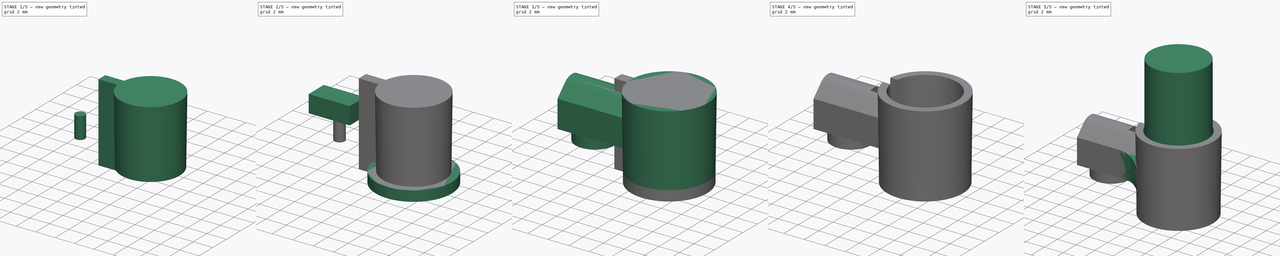
[diagram: build sequence overview — one tinted view per stage of 5, left to right]
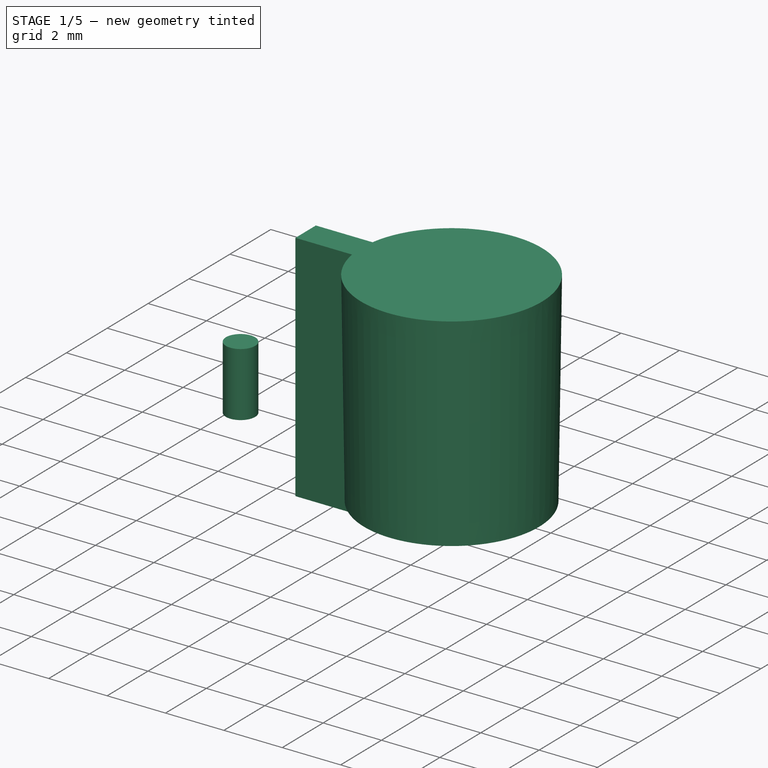
[diagram: stage 1 of 5 — iso view after this stage's code; geometry added in this stage tinted green]
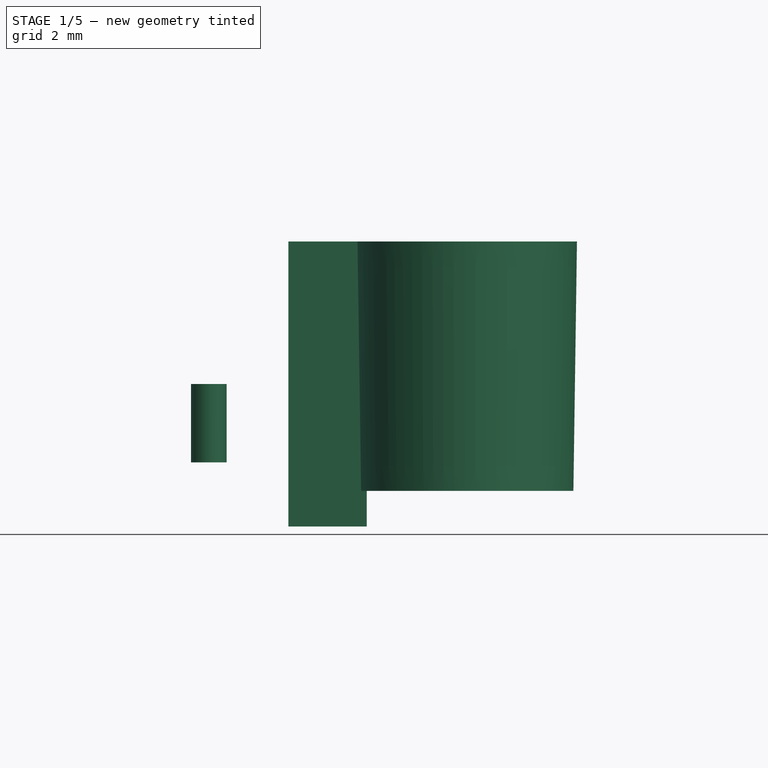
[diagram: stage 1 of 5 — front view after this stage's code; geometry added in this stage tinted green]
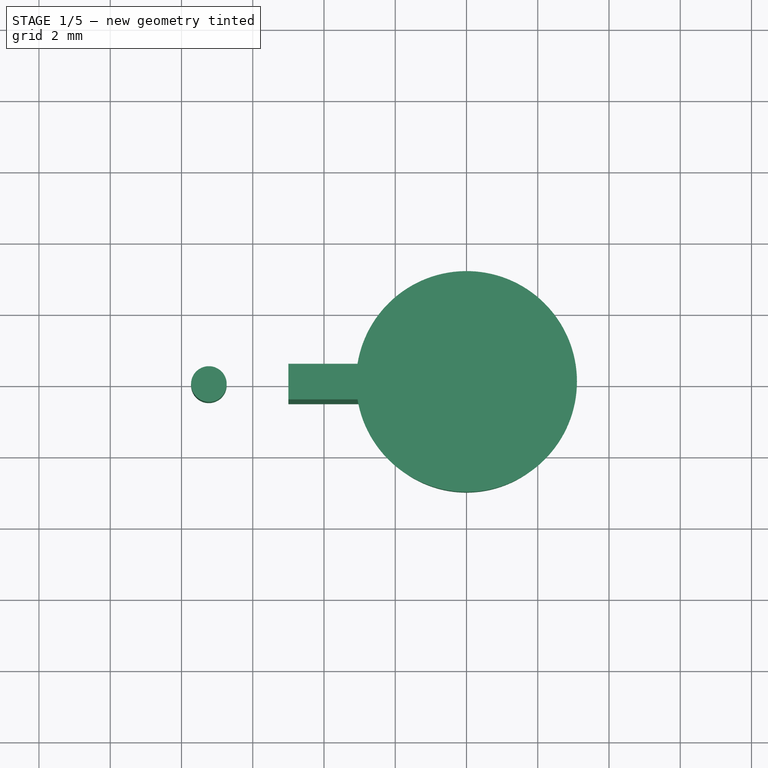
[diagram: stage 1 of 5 — top view after this stage's code; geometry added in this stage tinted green]
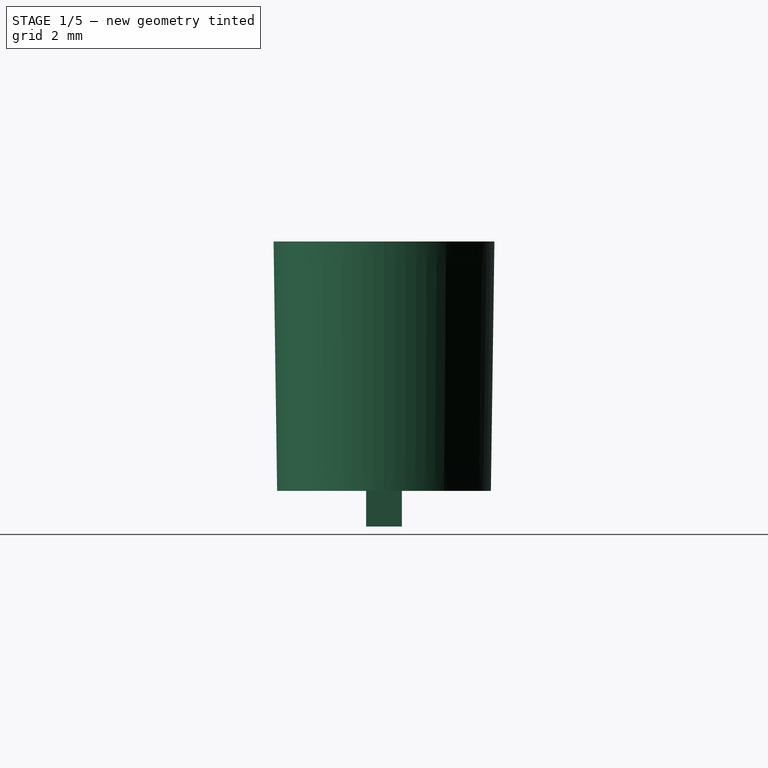
[diagram: stage 1 of 5 — right view after this stage's code; geometry added in this stage tinted green]
FCSTD DOCUMENT
Label: Basic_Stable
objects: Sketcher::SketchObject×5, PartDesign::Pad×5, Part::MultiFuse×4, PartDesign::Fillet×4, Part::Cone×2, Part::Cylinder×2, Part::Cut×1
note: 28 computed .brp shape members not serialized (recipe doc carries the construction recipe); baked Part::Feature solids carry a one-line shape summary decoded from their .brp

FEATURE [Sketcher::SketchObject] Sketch002  label="Wing"
  Placement = pos=(-9.5,-5,7.8) rot=(0.707107,0,0.707107;3.14159rad)
  sketch-geometry (4):
    g0: LineSegment StartX=-3.87 StartY=-6.05 StartZ=0 EndX=-3.87 EndY=-3.95 EndZ=0
    g1: LineSegment StartX=-2.17 StartY=-6.05 StartZ=0 EndX=-3.87 EndY=-6.05 EndZ=0
    g2: LineSegment StartX=-2.17 StartY=-3.95 StartZ=0 EndX=-3.87 EndY=-3.95 EndZ=0
    g3: LineSegment StartX=-2.17 StartY=-3.95 StartZ=0 EndX=-2.17 EndY=-6.05 EndZ=0
  constraints (12):
    c: Vertical(g0)
    c: DistanceY(g0) = 2.1
    c: Coincident(g1,g0)
    c: Horizontal(g1)
    c: Coincident(g2,g0)
    c: Horizontal(g2)
    c: Coincident(g3,g2)
    c: Coincident(g3,g1)
    c: Vertical(g3)
    c: DistanceX(g1) = -1.7
    c: DistanceX(g1) = -2.17
    c: DistanceY(g1) = -6.05
FEATURE [Sketcher::SketchObject] Sketch004  label="Wing Outline"
  Placement = pos=(-9.5,-5,6) rot=(0.707107,0,0.707107;3.14159rad)
  sketch-geometry (6):
    g0: LineSegment StartX=-3.10387 StartY=-7.00068 StartZ=0 EndX=-3.10387 EndY=-3.00068 EndZ=0
    g1: LineSegment StartX=-0.429185 StartY=-7.00068 StartZ=0 EndX=-3.10387 EndY=-7.00068 EndZ=0
    g2: LineSegment StartX=-0.428299 StartY=-3.00068 StartZ=0 EndX=-3.10387 EndY=-3.00068 EndZ=0
    g3: LineSegment StartX=0.496127 StartY=-6.07537 StartZ=0 EndX=-0.429185 EndY=-7.00068 EndZ=0
    g4: LineSegment StartX=-0.428299 StartY=-3.00068 StartZ=0 EndX=0.496127 EndY=-3.92511 EndZ=0
    g5: ArcOfCircle CenterX=-0.421544 CenterY=-5.00024 CenterZ=0 NormalX=0 NormalY=0 NormalZ=1 Radius=1.41352 StartAngle=5.41894 EndAngle=7.14743
  constraints (14):
    c: Vertical(g0)
    c: DistanceY(g0) = 4
    c: Coincident(g1,g0)
    c: Horizontal(g1)
    c: Coincident(g2,g0)
    c: Horizontal(g2)
    c: Coincident(g1,g3)
    c: Coincident(g2,g4)
    c: Angle(g3) = -2.35619
    c: Angle(g4) = -0.785398
    c: DistanceX(g4) = 0.496127
    c: DistanceY(g4) = -3.92511
    c: DistanceX(g3) = 0.496127
    c: DistanceY(g3) = -6.07537
FEATURE [Sketcher::SketchObject] Sketch005  label="Screw"
  Placement = pos=(-2,0,1.8) rot=(1,0,0;3.14159rad)
  sketch-geometry (1):
    g0: Circle CenterX=-5.23121 CenterY=0 CenterZ=0 NormalX=0 NormalY=0 NormalZ=1 Radius=0.5
  constraints (3):
    c: DistanceX(g0) = -5.23121
    c: DistanceY(g0) = 0
    c: Radius(g0) = 0.5
FEATURE [Sketcher::SketchObject] Sketch006  label="Cable Hole"
  Placement = pos=(0,0,8) rot=(0,0,1;0rad)
  sketch-geometry (4):
    g0: LineSegment StartX=-5 StartY=0.5 StartZ=0 EndX=-2.8 EndY=0.5 EndZ=0
    g1: LineSegment StartX=-2.8 StartY=0.5 StartZ=0 EndX=-2.8 EndY=-0.5 EndZ=0
    g2: LineSegment StartX=-2.8 StartY=-0.5 StartZ=0 EndX=-5 EndY=-0.5 EndZ=0
    g3: LineSegment StartX=-5 StartY=-0.5 StartZ=0 EndX=-5 EndY=0.5 EndZ=0
  constraints (12):
    c: Horizontal(g0)
    c: Coincident(g1,g0)
    c: Vertical(g1)
    c: Coincident(g2,g1)
    c: Horizontal(g2)
    c: Coincident(g3,g2)
    c: Coincident(g3,g0)
    c: Vertical(g3)
    c: DistanceX(g0) = 2.2
    c: DistanceY(g1) = -1
    c: DistanceX(g2) = -5
    c: DistanceY(g2) = -0.5
FEATURE [Sketcher::SketchObject] Sketch  label="Screw Support"
  Placement = pos=(-2,0,1.8) rot=(1,0,0;3.14159rad)
  sketch-geometry (1):
    g0: Circle CenterX=-5.23121 CenterY=0 CenterZ=0 NormalX=0 NormalY=0 NormalZ=1 Radius=1.9
  constraints (3):
    c: DistanceX(g0) = -5.23121
    c: DistanceY(g0) = 0
    c: Radius(g0) = 1.9
FEATURE [PartDesign::Pad] Pad002  label="Cable Hole Pad"
  Length = 8
  MirroredExtent = false
  Reversed = true
  Sketch = -> Sketch006
FEATURE [PartDesign::Pad] Pad006  label="Screw Pad"
  Length = 2.2
  MirroredExtent = false
  Reversed = true
  Sketch = -> Sketch005
FEATURE [Part::Cone] Cone
  Angle = 360
  Height = 7
  Placement = pos=(0,0,1) rot=(0,0,1;0rad)
  Radius1 = 3
  Radius2 = 3.1
FEATURE [Part::MultiFuse] Fusion003  label="Inner cone cutout"
  Shapes = -> [Cone,Pad002]
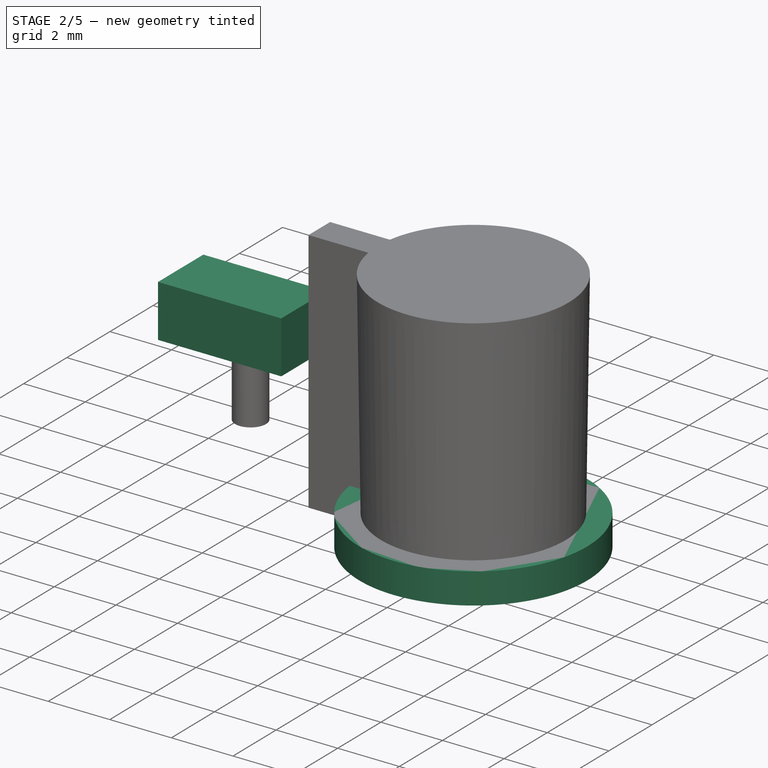
[diagram: stage 2 of 5 — iso view after this stage's code; geometry added in this stage tinted green]
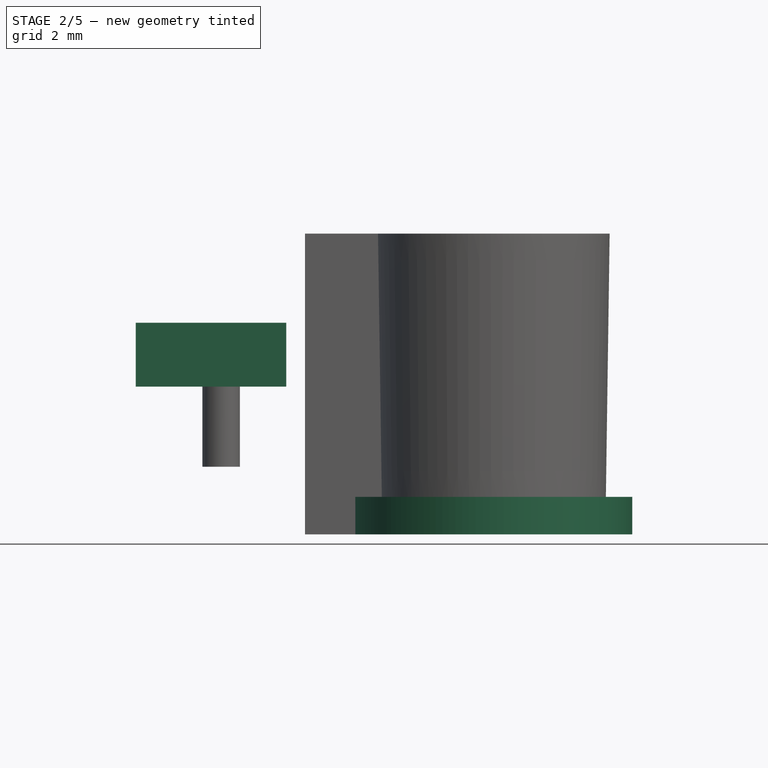
[diagram: stage 2 of 5 — front view after this stage's code; geometry added in this stage tinted green]
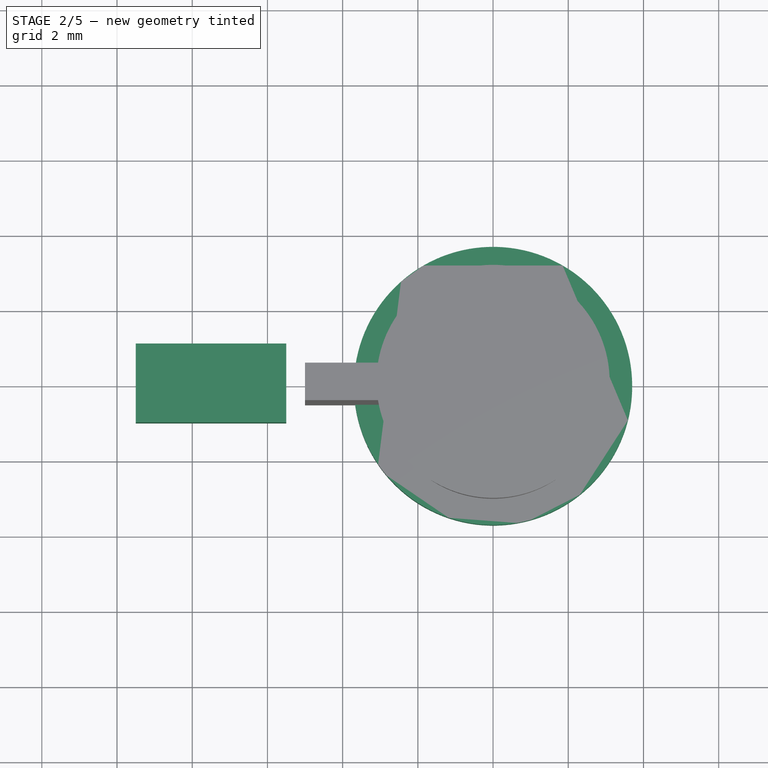
[diagram: stage 2 of 5 — top view after this stage's code; geometry added in this stage tinted green]
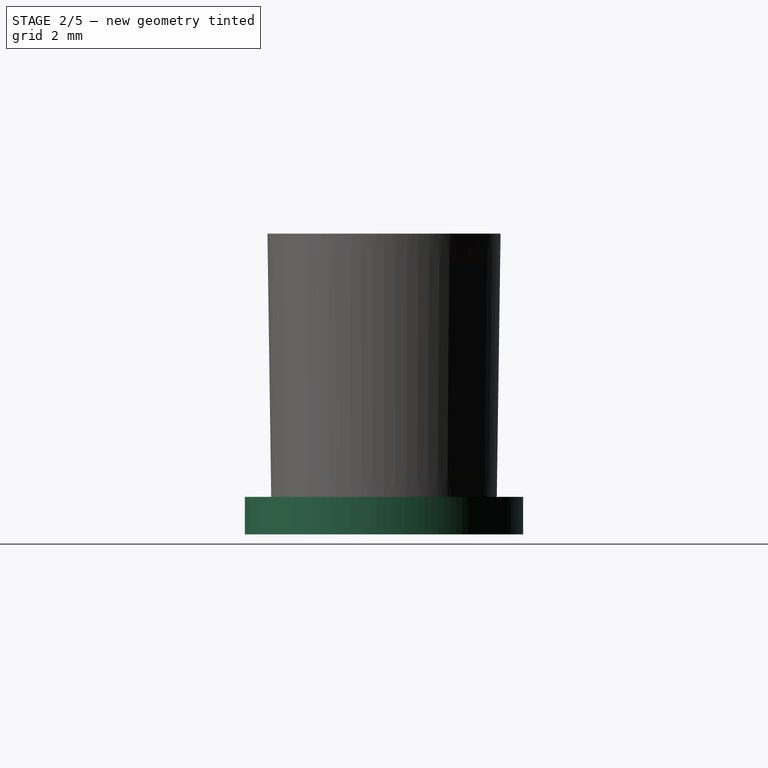
[diagram: stage 2 of 5 — right view after this stage's code; geometry added in this stage tinted green]
FEATURE [PartDesign::Pad] Pad004  label="Inner Wing Pad"
  Length = 4
  MirroredExtent = false
  Sketch = -> Sketch002
FEATURE [Part::Cylinder] Cylinder
  Angle = 360
  Height = 1
  Radius = 3.7
FEATURE [Part::MultiFuse] Fusion005  label="Body cutout"
  Shapes = -> [Fusion003,Pad006,Pad004]
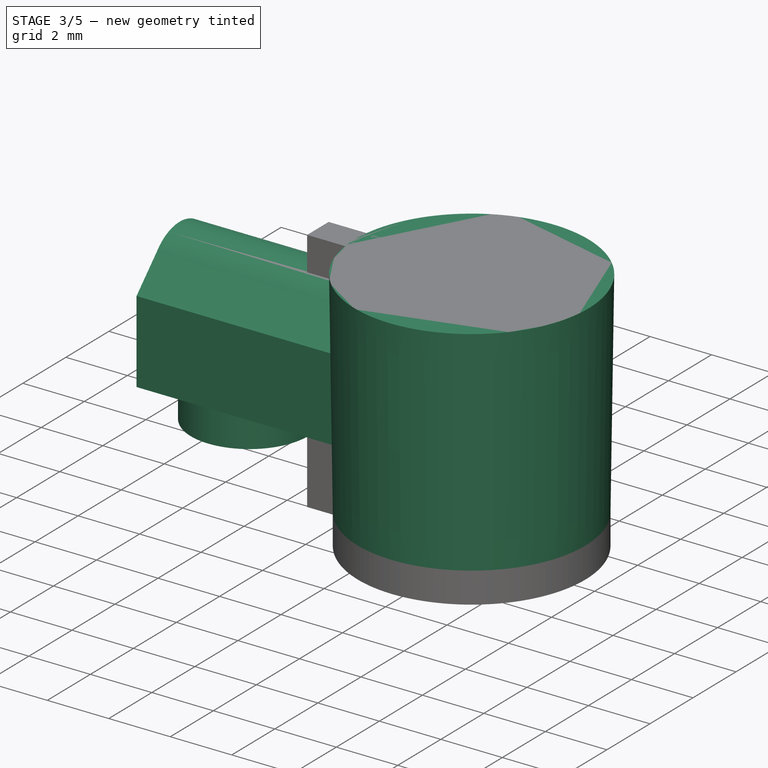
[diagram: stage 3 of 5 — iso view after this stage's code; geometry added in this stage tinted green]
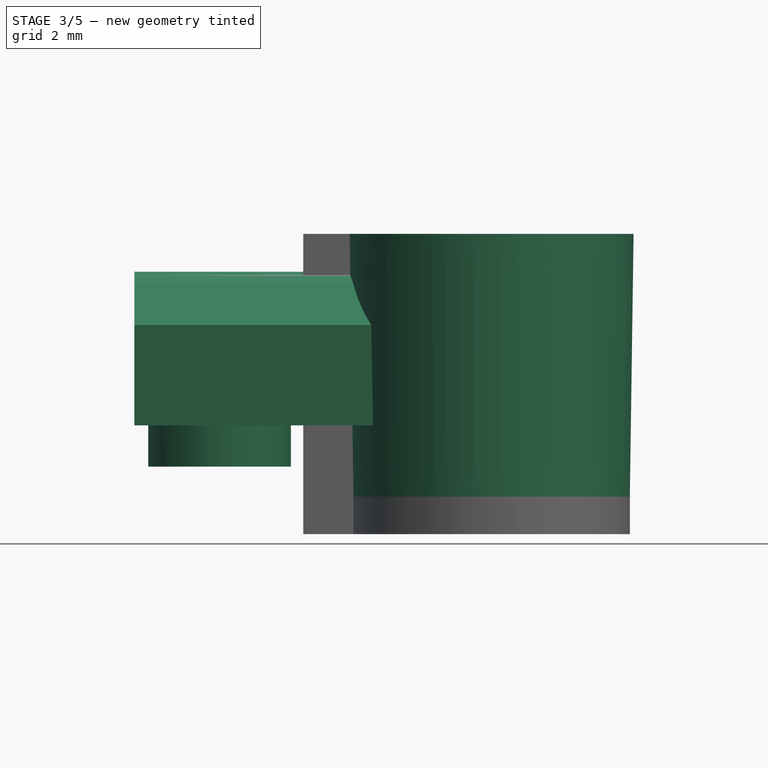
[diagram: stage 3 of 5 — front view after this stage's code; geometry added in this stage tinted green]
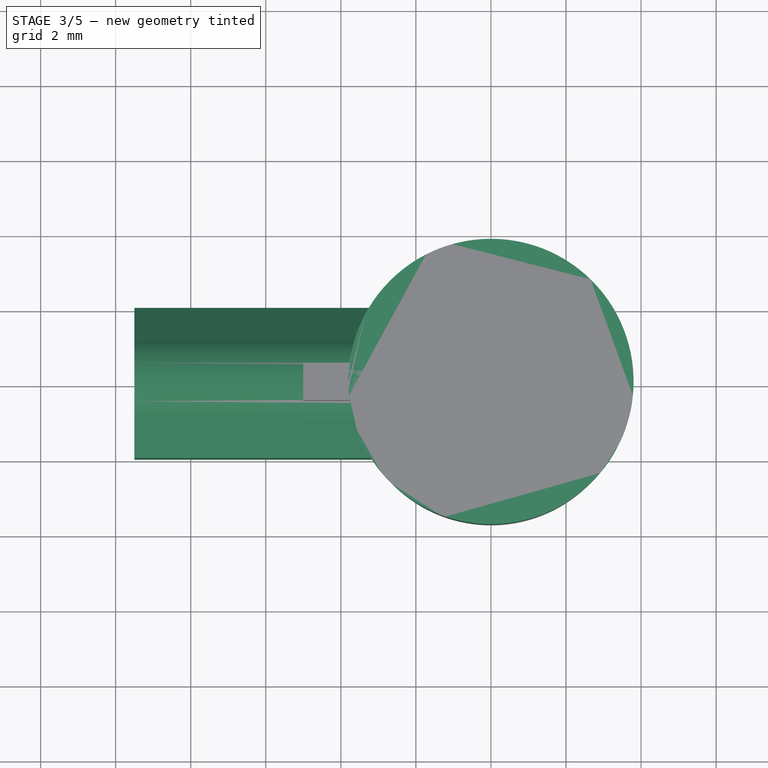
[diagram: stage 3 of 5 — top view after this stage's code; geometry added in this stage tinted green]
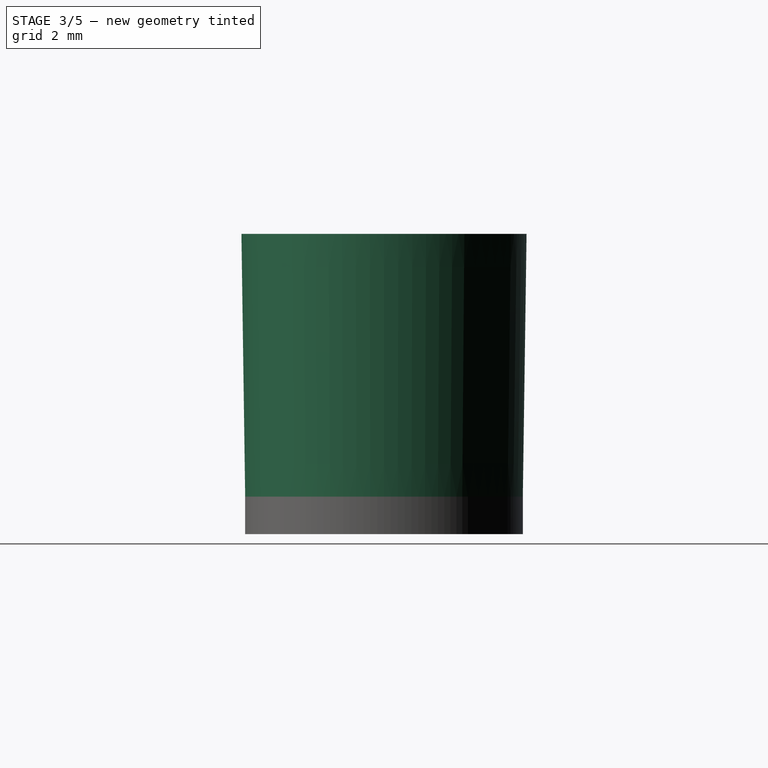
[diagram: stage 3 of 5 — right view after this stage's code; geometry added in this stage tinted green]
FEATURE [PartDesign::Pad] Pad003  label="Wing Outline Pad"
  Length = 8
  MirroredExtent = false
  Sketch = -> Sketch004
FEATURE [PartDesign::Pad] Pad005  label="Screw Support Pad"
  Length = 2.1
  MirroredExtent = false
  Reversed = true
  Sketch = -> Sketch
FEATURE [Part::Cone] Cone001  label="Outer cone"
  Angle = 360
  Height = 7
  Placement = pos=(0,0,1) rot=(0,0,1;0rad)
  Radius1 = 3.7
  Radius2 = 3.8
FEATURE [Part::MultiFuse] Fusion  label="Outer cone and bottom"
  Shapes = -> [Cone001,Cylinder]
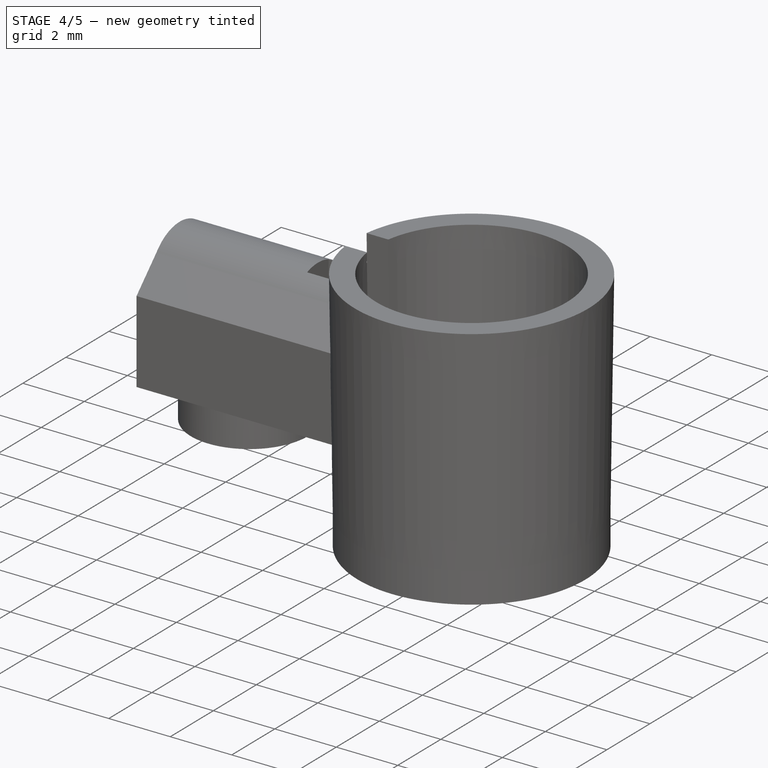
[diagram: stage 4 of 5 — iso view after this stage's code; geometry added in this stage tinted green]
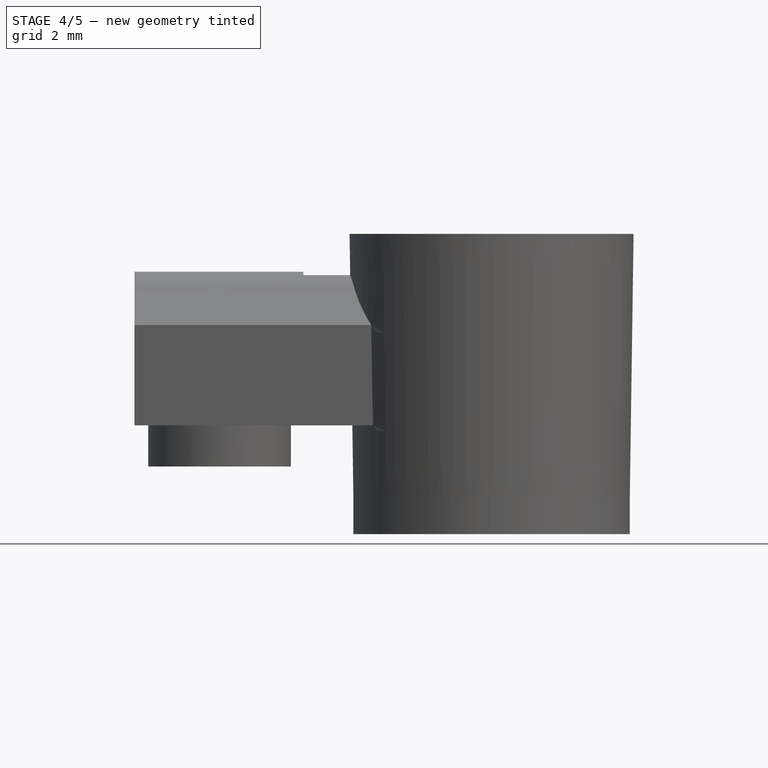
[diagram: stage 4 of 5 — front view after this stage's code; geometry added in this stage tinted green]
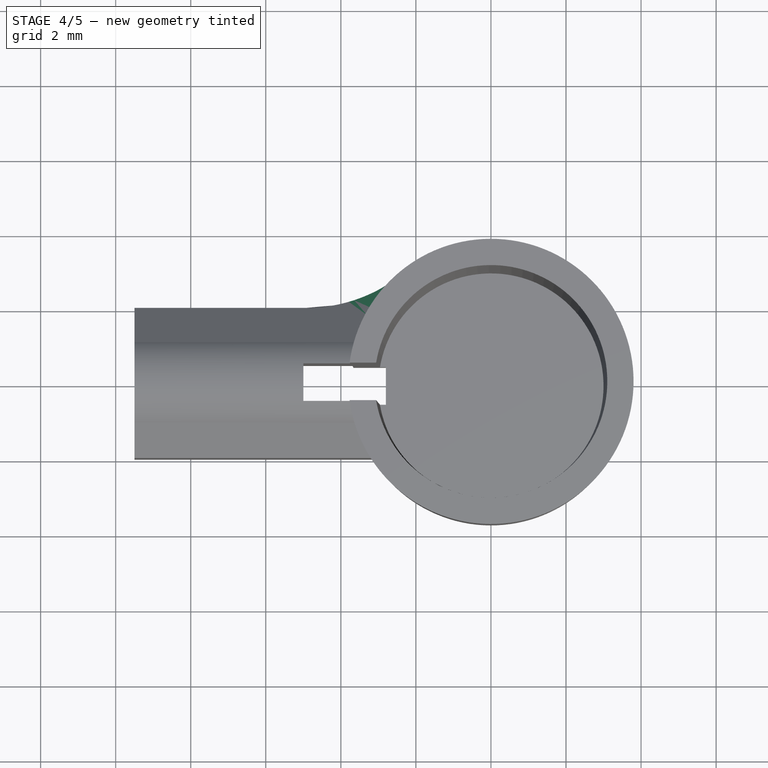
[diagram: stage 4 of 5 — top view after this stage's code; geometry added in this stage tinted green]
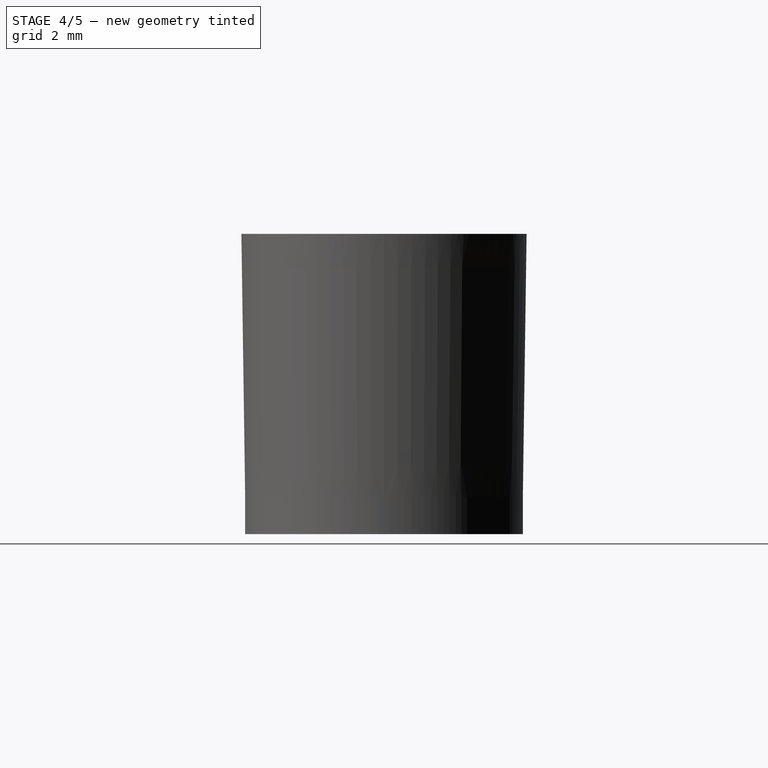
[diagram: stage 4 of 5 — right view after this stage's code; geometry added in this stage tinted green]
FEATURE [Part::MultiFuse] Fusion004  label="Solid body"
  Shapes = -> [Pad005,Pad003,Fusion]
FEATURE [Part::Cut] Cut  label="Colid with cutout"
  Base = -> Fusion004
  Tool = -> Fusion005
FEATURE [PartDesign::Fillet] Fillet
  Base = -> Cut [Edge32]
  Radius = 4
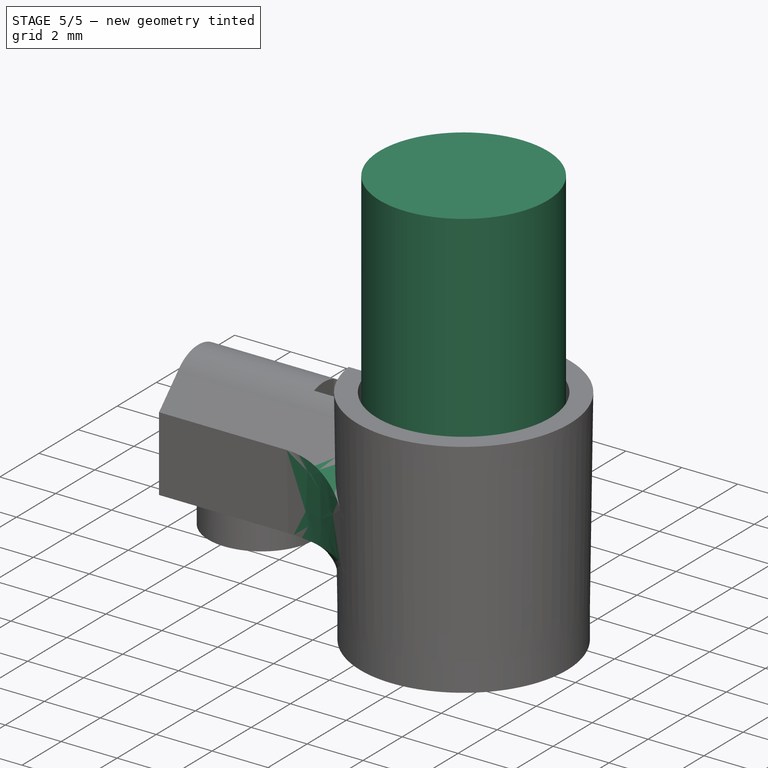
[diagram: stage 5 of 5 — iso view after this stage's code; geometry added in this stage tinted green]
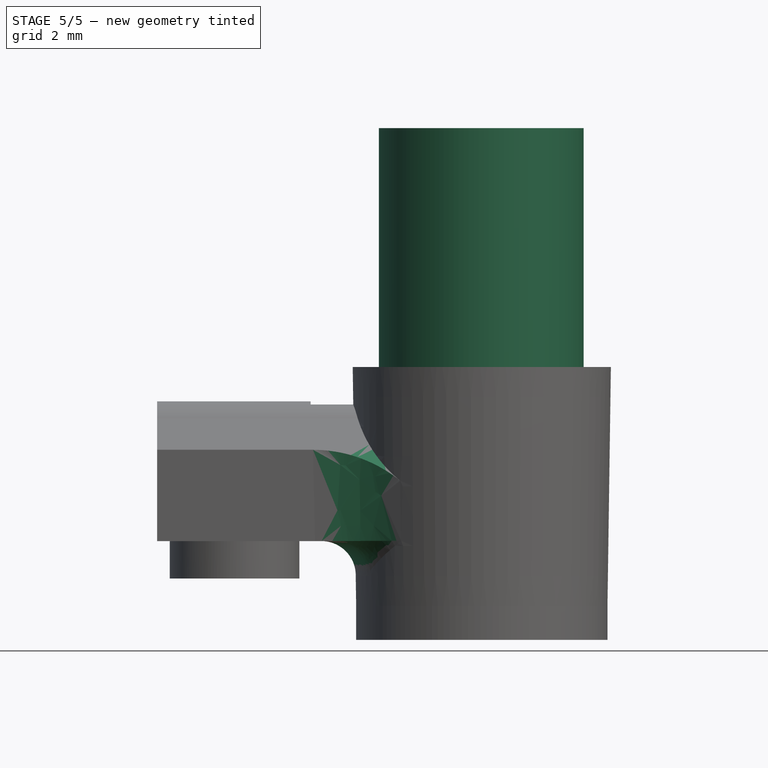
[diagram: stage 5 of 5 — front view after this stage's code; geometry added in this stage tinted green]
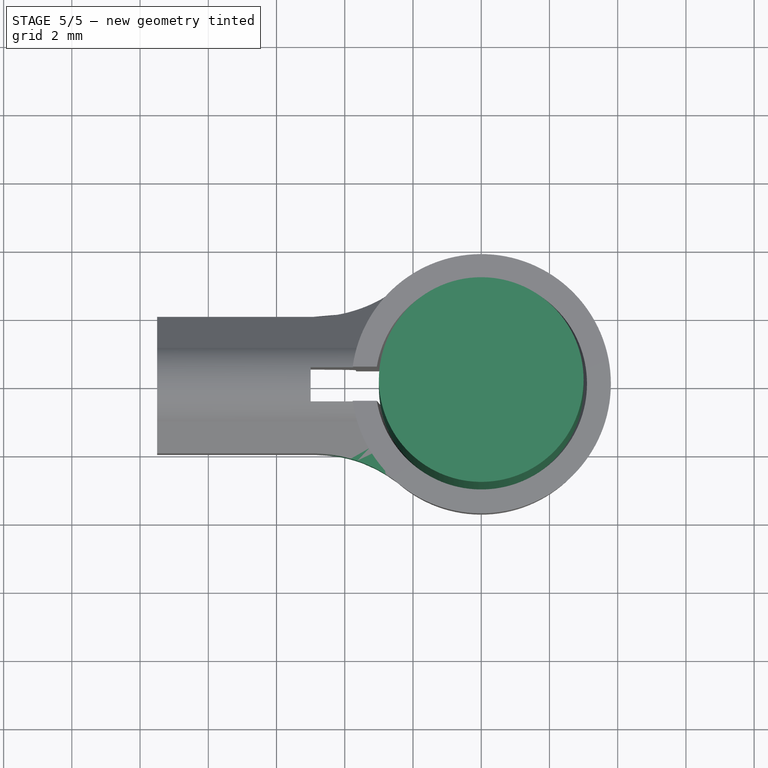
[diagram: stage 5 of 5 — top view after this stage's code; geometry added in this stage tinted green]
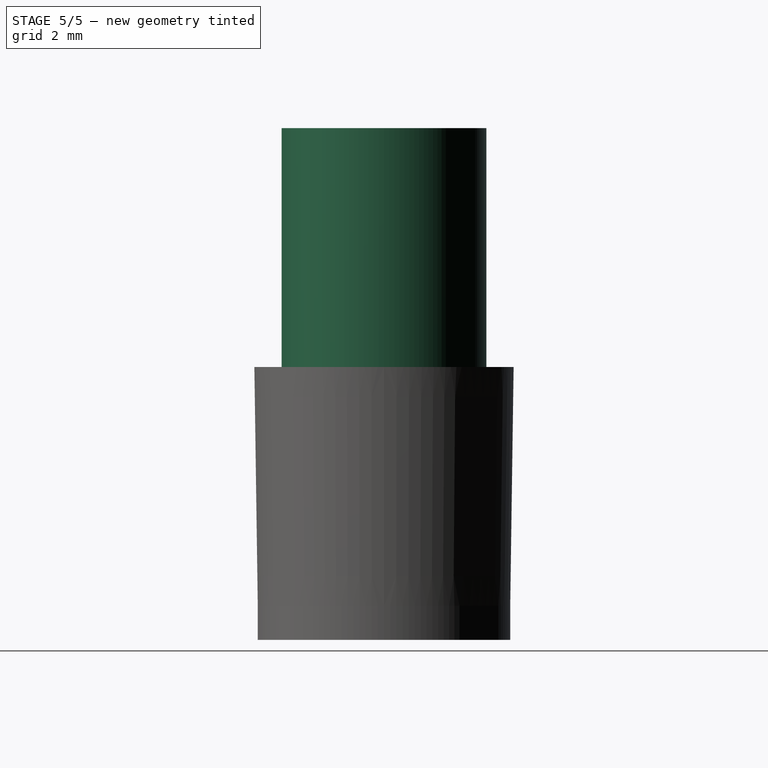
[diagram: stage 5 of 5 — right view after this stage's code; geometry added in this stage tinted green]
FEATURE [Part::Cylinder] Cylinder001  label="Motor Mockup"
  Angle = 360
  Height = 14
  Placement = pos=(0,0,1) rot=(0,0,1;0rad)
  Radius = 3
FEATURE [PartDesign::Fillet] Fillet001
  Base = -> Fillet [Edge35]
  Radius = 4
FEATURE [PartDesign::Fillet] Fillet002
  Base = -> Fillet001 [Edge6]
  Radius = 1
FEATURE [PartDesign::Fillet] Fillet003
  Base = -> Fillet002 [Edge10]
  Radius = 1
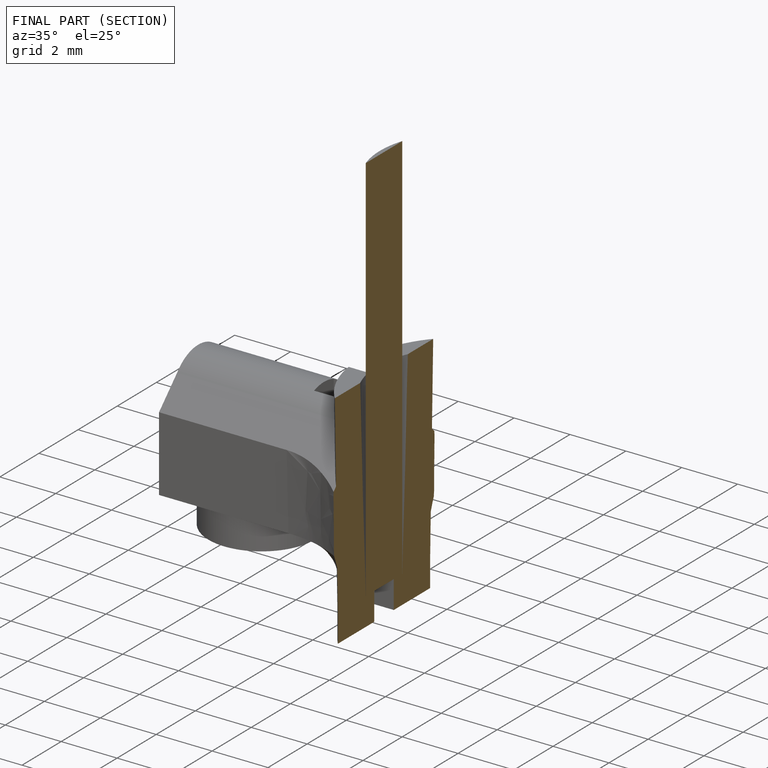
[diagram: finished part — half-section view (interior)]
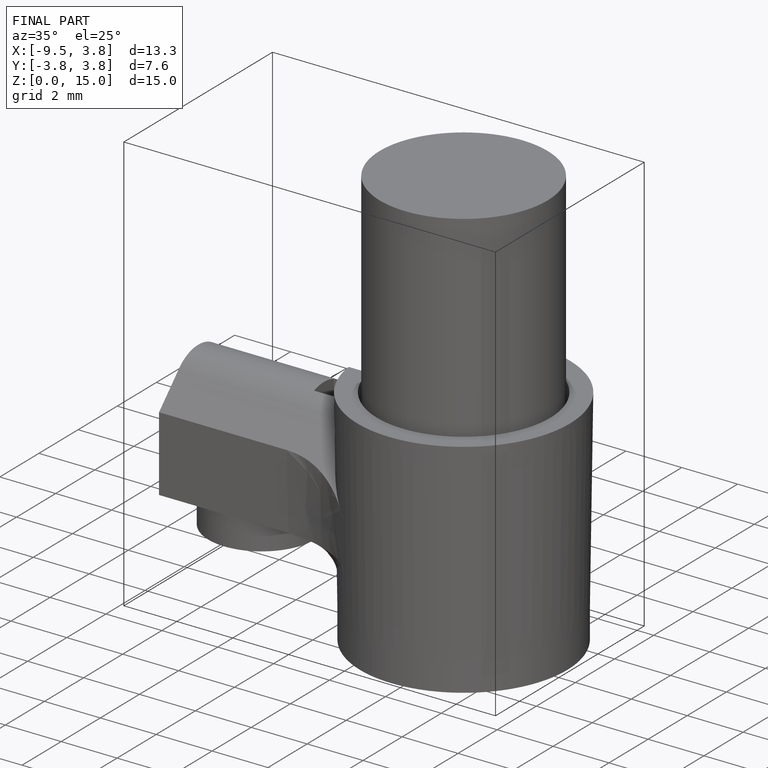
[diagram: finished part — iso view with bounding-box wireframe]
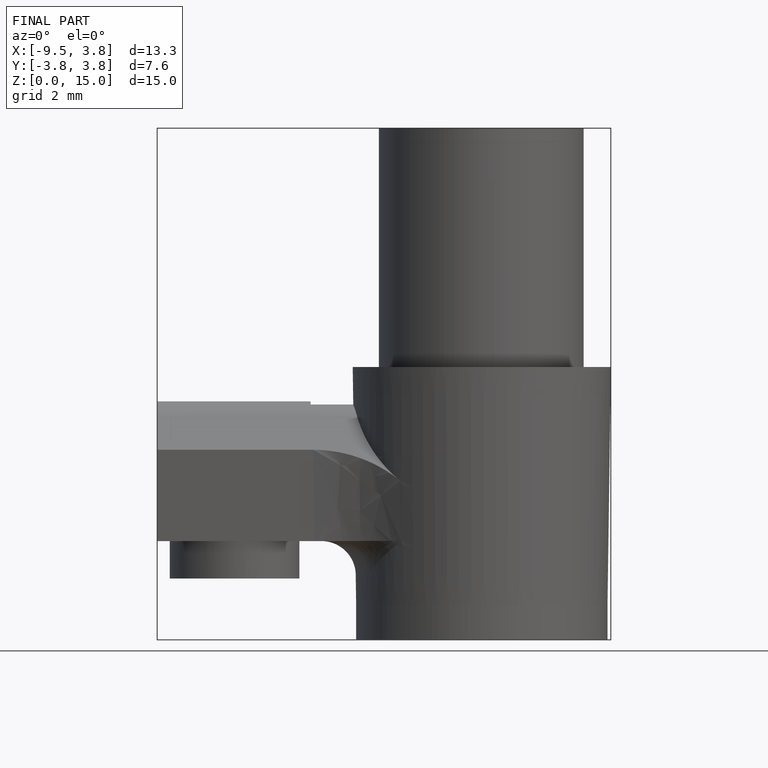
[diagram: finished part — front view with bounding-box wireframe]
